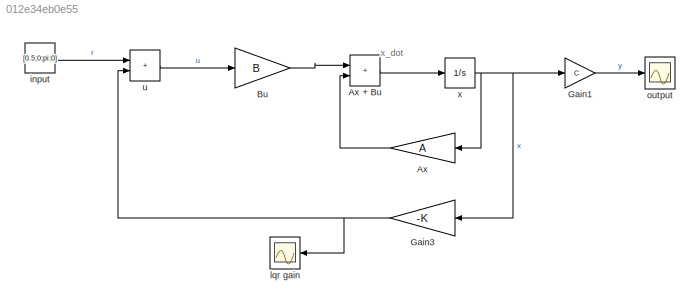
MODEL slx_012e34eb0e55
KIND model
CONFIG AbsTol = auto
CONFIG EnableMultiTasking = off
CONFIG FixedStep = auto
CONFIG MaxStep = auto
CONFIG MinStep = auto
CONFIG RelTol = 1e-3
CONFIG SampleTimeConstraint = Unconstrained
CONFIG SolverName = VariableStepAuto
CONFIG StartTime = 0.0
CONFIG StopTime = 10.0
BLOCK [Gain] Ax
  Gain = A
  Multiplication = Matrix(K*u) (u vector)
BLOCK [Sum] Ax + Bu
  IconShape = rectangular
  Ports = [2, 1]
BLOCK [Gain] Bu
  Gain = B
BLOCK [Gain] Gain1
  Gain = C
BLOCK [Gain] Gain3
  Gain = -K
BLOCK [Constant] input
  Value = [0.5;0;pi;0]
BLOCK [Scope] lqr gain
  Floating = off
  NumInputPorts = 1
  Ports = [1]
  ScopeSpecificationString = Simulink.scopes.TimeScopeBlockCfg('CurrentConfiguration', extmgr.ConfigurationSet(extmgr.Configuration('Core','General UI',true),extmgr.Configuration('Core','Source UI',true),extmgr.Configuration('Sources','WiredSimulink',true,'DataLoggingVariableName','ScopeData1'),extmgr.Configuration('Visuals','Time Domain',true,'SerializedDisplays',{struct('MinYLimReal','-1.00000','MaxYLimReal','1.00000','YLab...<+1452ch>
BLOCK [Scope] output
  Floating = off
  NumInputPorts = 1
  Ports = [1]
  ScopeSpecificationString = Simulink.scopes.TimeScopeBlockCfg('CurrentConfiguration', extmgr.ConfigurationSet(extmgr.Configuration('Core','General UI',true),extmgr.Configuration('Core','Source UI',true),extmgr.Configuration('Sources','WiredSimulink',true),extmgr.Configuration('Visuals','Time Domain',true,'SerializedDisplays',{struct('MinYLimReal','-1.00000','MaxYLimReal','1.00000','YLabelReal','','MinYLimMag','0.00000','MaxY...<+1396ch>
BLOCK [Sum] u
  IconShape = rectangular
  Ports = [2, 1]
BLOCK [Integrator] x
  Ports = [1, 1]
ANNOTATION (root): x_dot
LINE Ax + Bu:1 -> x:1
LINE Ax:1 -> Ax + Bu:2
LINE Bu:1 -> Ax + Bu:1
LINE Gain1:1 -> output:1
NET Gain3:1 -> lqr gain:1, u:2
LINE input:1 -> u:1
LINE u:1 -> Bu:1
NET x:1 -> Ax:1, Gain1:1, Gain3:1
note: NET lines group one-source signal fan-out (src -> all destinations, sorted); 1:1 wires keep LINE
